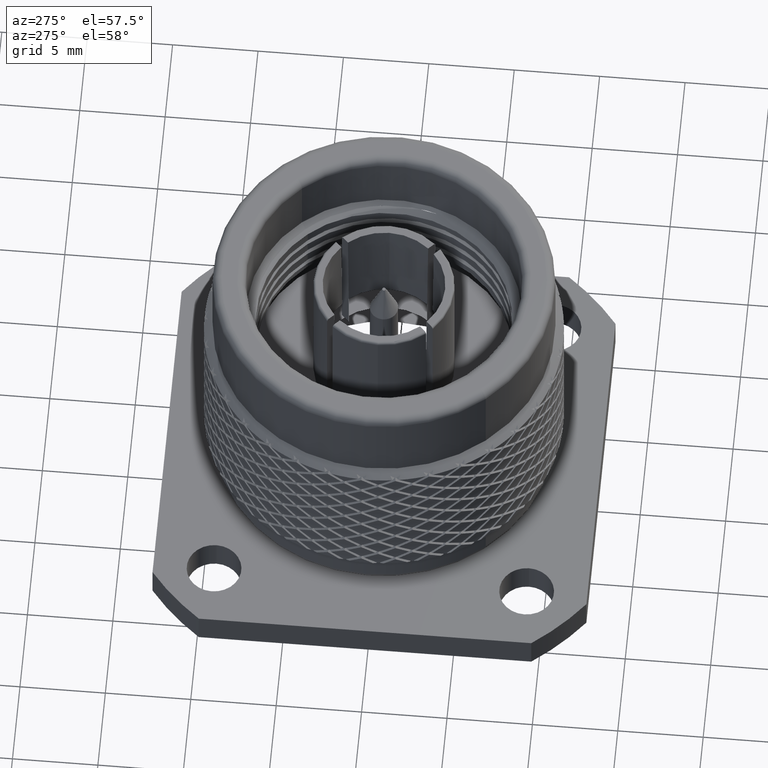
[diagram: clean part render]
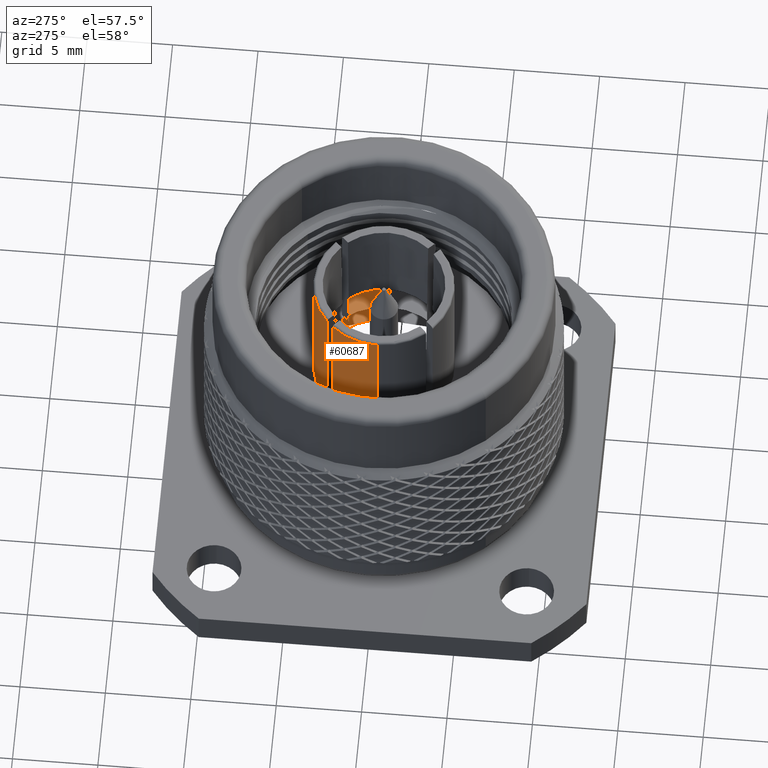
[diagram: same view with one face highlighted and labeled with its STEP entity id]
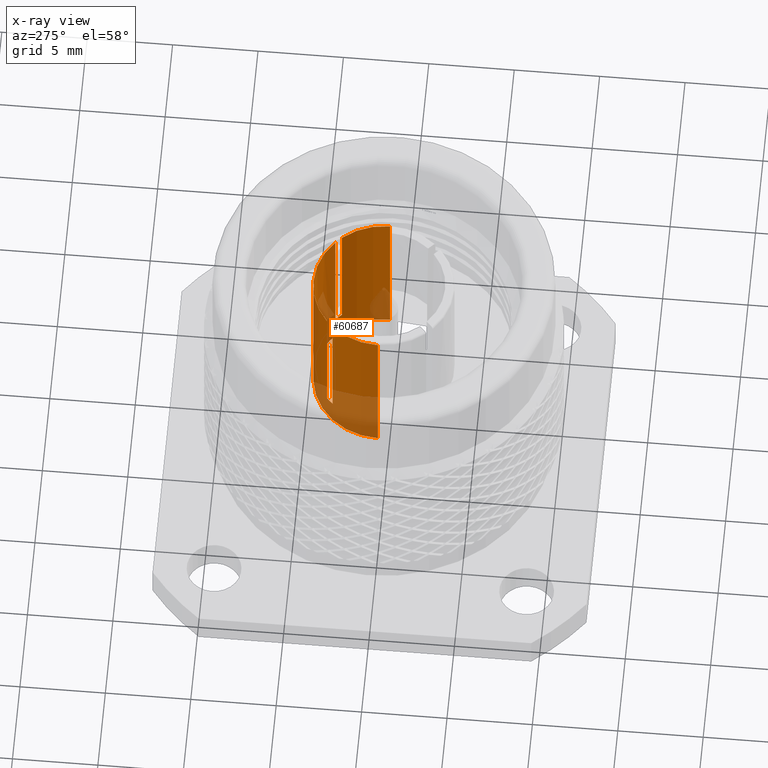
[diagram: x-ray of the same camera — body ghosted, the highlighted face saturated]
A machine part, auxiliary view. The second image highlights one B-rep face of the part: STEP entity #60687.
The next image is the same camera in x-ray: the body ghosted, the highlighted face saturated — about 26% of this face is hidden behind the body in this view.
In plain terms, the highlighted cylindrical surface (partial cylindrical patch) has radius 4.125 mm, axis along (-0, -0, -1).
Its self-contained STEP definition (entity closure, byte-faithful):
#310 = DIRECTION ( 'NONE',  ( -1.000000000000000000, 0.000000000000000000, 0.000000000000000000 ) ) ;
#857 = VERTEX_POINT ( 'NONE', #29938 ) ;
#932 = CARTESIAN_POINT ( 'NONE',  ( -3.088230370009642733, 2.734676979416418519, 19.59999999999999787 ) ) ;
#1042 = VERTEX_POINT ( 'NONE', #10376 ) ;
#1084 = DIRECTION ( 'NONE',  ( -0.000000000000000000, -0.000000000000000000, -1.000000000000000000 ) ) ;
#1649 = LINE ( 'NONE', #98027, #85369 ) ;
#1927 = ORIENTED_EDGE ( 'NONE', *, *, #38778, .F. ) ;
#2506 = DIRECTION ( 'NONE',  ( 0.000000000000000000, 0.000000000000000000, 1.000000000000000000 ) ) ;
#3389 = CARTESIAN_POINT ( 'NONE',  ( -4.125000000000000000, 0.000000000000000000, 19.59999999999999787 ) ) ;
#4467 = CYLINDRICAL_SURFACE ( 'NONE', #80244, 4.125000000000000000 ) ;
#5751 = AXIS2_PLACEMENT_3D ( 'NONE', #12696, #107561, #143927 ) ;
#8652 = VERTEX_POINT ( 'NONE', #3389 ) ;
#10376 = CARTESIAN_POINT ( 'NONE',  ( -4.125000000000000000, 0.000000000000000000, 9.500000000000000000 ) ) ;
#11199 = CARTESIAN_POINT ( 'NONE',  ( 4.125000000000000000, 5.051668046482832750E-16, 7.700000000000000178 ) ) ;
#12696 = CARTESIAN_POINT ( 'NONE',  ( 0.000000000000000000, 0.000000000000000000, 19.59999999999999787 ) ) ;
#13349 = EDGE_CURVE ( 'NONE', #40521, #20719, #70307, .T. ) ;
#18270 = DIRECTION ( 'NONE',  ( -1.000000000000000000, 0.000000000000000000, 0.000000000000000000 ) ) ;
#19947 = ORIENTED_EDGE ( 'NONE', *, *, #94926, .T. ) ;
#20719 = VERTEX_POINT ( 'NONE', #38575 ) ;
#21070 = ORIENTED_EDGE ( 'NONE', *, *, #118331, .F. ) ;
#22258 = CARTESIAN_POINT ( 'NONE',  ( 3.088230370009661385, 2.734676979416397646, 19.59999999999999787 ) ) ;
#23812 = VERTEX_POINT ( 'NONE', #932 ) ;
#24120 = VECTOR ( 'NONE', #25448, 1000.000000000000000 ) ;
#25024 = ORIENTED_EDGE ( 'NONE', *, *, #110481, .F. ) ;
#25448 = DIRECTION ( 'NONE',  ( -0.000000000000000000, -0.000000000000000000, -1.000000000000000000 ) ) ;
#25613 = EDGE_CURVE ( 'NONE', #140441, #79129, #1649, .T. ) ;
#26226 = LINE ( 'NONE', #11199, #24120 ) ;
#26432 = CARTESIAN_POINT ( 'NONE',  ( 4.125000000000000000, 5.051668046482832750E-16, 9.500000000000000000 ) ) ;
#28543 = DIRECTION ( 'NONE',  ( -0.000000000000000000, -0.000000000000000000, -1.000000000000000000 ) ) ;
#29925 = CIRCLE ( 'NONE', #50063, 4.125000000000000000 ) ;
#29938 = CARTESIAN_POINT ( 'NONE',  ( 2.734676979416386100, 3.088230370009671155, 19.59999999999999787 ) ) ;
#31088 = AXIS2_PLACEMENT_3D ( 'NONE', #33023, #104880, #103299 ) ;
#32601 = ORIENTED_EDGE ( 'NONE', *, *, #60216, .F. ) ;
#33023 = CARTESIAN_POINT ( 'NONE',  ( 0.000000000000000000, 0.000000000000000000, 9.500000000000000000 ) ) ;
#36348 = CARTESIAN_POINT ( 'NONE',  ( -2.734676979416365228, 3.088230370009690695, 7.700000000000000178 ) ) ;
#37195 = CARTESIAN_POINT ( 'NONE',  ( 3.088230370009660941, 2.734676979416397202, 11.25000000000000000 ) ) ;
#37791 = ORIENTED_EDGE ( 'NONE', *, *, #43466, .T. ) ;
#38575 = CARTESIAN_POINT ( 'NONE',  ( -2.734676979416364784, 3.088230370009689807, 11.25000000000000000 ) ) ;
#38778 = EDGE_CURVE ( 'NONE', #40521, #23812, #40833, .T. ) ;
#40382 = CIRCLE ( 'NONE', #105909, 4.125000000000000000 ) ;
#40521 = VERTEX_POINT ( 'NONE', #124482 ) ;
#40833 = LINE ( 'NONE', #100069, #131311 ) ;
#43167 = DIRECTION ( 'NONE',  ( -0.000000000000000000, -0.000000000000000000, -1.000000000000000000 ) ) ;
#43466 = EDGE_CURVE ( 'NONE', #81524, #857, #40382, .T. ) ;
#48193 = DIRECTION ( 'NONE',  ( -0.000000000000000000, -0.000000000000000000, -1.000000000000000000 ) ) ;
#50063 = AXIS2_PLACEMENT_3D ( 'NONE', #99637, #85443, #18270 ) ;
#50798 = ORIENTED_EDGE ( 'NONE', *, *, #69221, .T. ) ;
#58784 = ORIENTED_EDGE ( 'NONE', *, *, #147825, .F. ) ;
#60216 = EDGE_CURVE ( 'NONE', #81524, #20719, #105901, .T. ) ;
#60687 = ADVANCED_FACE ( 'NONE', ( #101638 ), #4467, .T. ) ;
#65316 = DIRECTION ( 'NONE',  ( -1.000000000000000000, 0.000000000000000000, 0.000000000000000000 ) ) ;
#65794 = CARTESIAN_POINT ( 'NONE',  ( 4.125000000000000000, 5.051668046482832750E-16, 19.59999999999999787 ) ) ;
#69221 = EDGE_CURVE ( 'NONE', #124958, #79129, #151667, .T. ) ;
#70307 = CIRCLE ( 'NONE', #120736, 4.125000000000000000 ) ;
#75159 = CARTESIAN_POINT ( 'NONE',  ( 0.000000000000000000, 0.000000000000000000, 11.25000000000000000 ) ) ;
#75993 = ORIENTED_EDGE ( 'NONE', *, *, #111481, .T. ) ;
#79129 = VERTEX_POINT ( 'NONE', #37195 ) ;
#80244 = AXIS2_PLACEMENT_3D ( 'NONE', #115112, #43167, #65316 ) ;
#81524 = VERTEX_POINT ( 'NONE', #110656 ) ;
#85023 = CARTESIAN_POINT ( 'NONE',  ( -4.125000000000000000, 0.000000000000000000, 7.700000000000000178 ) ) ;
#85369 = VECTOR ( 'NONE', #146276, 1000.000000000000000 ) ;
#85443 = DIRECTION ( 'NONE',  ( -0.000000000000000000, -0.000000000000000000, -1.000000000000000000 ) ) ;
#85452 = VECTOR ( 'NONE', #2506, 1000.000000000000000 ) ;
#85945 = AXIS2_PLACEMENT_3D ( 'NONE', #132349, #107865, #133120 ) ;
#88983 = DIRECTION ( 'NONE',  ( 0.000000000000000000, 0.000000000000000000, 1.000000000000000000 ) ) ;
#92559 = VECTOR ( 'NONE', #105668, 1000.000000000000000 ) ;
#92672 = ORIENTED_EDGE ( 'NONE', *, *, #13349, .T. ) ;
#94926 = EDGE_CURVE ( 'NONE', #134283, #153857, #26226, .T. ) ;
#96890 = LINE ( 'NONE', #85023, #92559 ) ;
#98027 = CARTESIAN_POINT ( 'NONE',  ( 3.088230370009661829, 2.734676979416397646, 7.700000000000000178 ) ) ;
#99637 = CARTESIAN_POINT ( 'NONE',  ( 0.000000000000000000, 0.000000000000000000, 19.59999999999999787 ) ) ;
#100069 = CARTESIAN_POINT ( 'NONE',  ( -3.088230370009643178, 2.734676979416418963, 7.700000000000000178 ) ) ;
#101638 = FACE_OUTER_BOUND ( 'NONE', #120437, .T. ) ;
#101892 = ORIENTED_EDGE ( 'NONE', *, *, #25613, .F. ) ;
#103299 = DIRECTION ( 'NONE',  ( -1.000000000000000000, 0.000000000000000000, 0.000000000000000000 ) ) ;
#104880 = DIRECTION ( 'NONE',  ( -0.000000000000000000, -0.000000000000000000, -1.000000000000000000 ) ) ;
#105668 = DIRECTION ( 'NONE',  ( -0.000000000000000000, -0.000000000000000000, -1.000000000000000000 ) ) ;
#105901 = LINE ( 'NONE', #36348, #128207 ) ;
#105909 = AXIS2_PLACEMENT_3D ( 'NONE', #109351, #1084, #310 ) ;
#107561 = DIRECTION ( 'NONE',  ( -0.000000000000000000, -0.000000000000000000, -1.000000000000000000 ) ) ;
#107865 = DIRECTION ( 'NONE',  ( -0.000000000000000000, -0.000000000000000000, -1.000000000000000000 ) ) ;
#109351 = CARTESIAN_POINT ( 'NONE',  ( 0.000000000000000000, 0.000000000000000000, 19.59999999999999787 ) ) ;
#110481 = EDGE_CURVE ( 'NONE', #1042, #153857, #114315, .T. ) ;
#110656 = CARTESIAN_POINT ( 'NONE',  ( -2.734676979416364784, 3.088230370009689807, 19.59999999999999787 ) ) ;
#111481 = EDGE_CURVE ( 'NONE', #140441, #134283, #131973, .T. ) ;
#114315 = CIRCLE ( 'NONE', #31088, 4.125000000000000000 ) ;
#115112 = CARTESIAN_POINT ( 'NONE',  ( 0.000000000000000000, 0.000000000000000000, 7.700000000000000178 ) ) ;
#117895 = ORIENTED_EDGE ( 'NONE', *, *, #126957, .T. ) ;
#118331 = EDGE_CURVE ( 'NONE', #124958, #857, #136023, .T. ) ;
#120437 = EDGE_LOOP ( 'NONE', ( #75993, #19947, #25024, #58784, #117895, #1927, #92672, #32601, #37791, #21070, #50798, #101892 ) ) ;
#120736 = AXIS2_PLACEMENT_3D ( 'NONE', #75159, #28543, #148640 ) ;
#124482 = CARTESIAN_POINT ( 'NONE',  ( -3.088230370009642289, 2.734676979416418963, 11.25000000000000000 ) ) ;
#124955 = CARTESIAN_POINT ( 'NONE',  ( 2.734676979416386100, 3.088230370009671155, 7.700000000000000178 ) ) ;
#124958 = VERTEX_POINT ( 'NONE', #150044 ) ;
#126957 = EDGE_CURVE ( 'NONE', #8652, #23812, #29925, .T. ) ;
#128207 = VECTOR ( 'NONE', #48193, 1000.000000000000000 ) ;
#131311 = VECTOR ( 'NONE', #88983, 1000.000000000000000 ) ;
#131973 = CIRCLE ( 'NONE', #5751, 4.125000000000000000 ) ;
#132349 = CARTESIAN_POINT ( 'NONE',  ( 0.000000000000000000, 0.000000000000000000, 11.25000000000000000 ) ) ;
#133120 = DIRECTION ( 'NONE',  ( 1.000000000000000000, -3.463895836830489037E-14, 0.000000000000000000 ) ) ;
#134283 = VERTEX_POINT ( 'NONE', #65794 ) ;
#136023 = LINE ( 'NONE', #124955, #85452 ) ;
#140441 = VERTEX_POINT ( 'NONE', #22258 ) ;
#143927 = DIRECTION ( 'NONE',  ( -1.000000000000000000, 0.000000000000000000, 0.000000000000000000 ) ) ;
#146276 = DIRECTION ( 'NONE',  ( -0.000000000000000000, -0.000000000000000000, -1.000000000000000000 ) ) ;
#147825 = EDGE_CURVE ( 'NONE', #8652, #1042, #96890, .T. ) ;
#148640 = DIRECTION ( 'NONE',  ( 1.000000000000000000, 0.000000000000000000, 0.000000000000000000 ) ) ;
#150044 = CARTESIAN_POINT ( 'NONE',  ( 2.734676979416385656, 3.088230370009670711, 11.25000000000000000 ) ) ;
#151667 = CIRCLE ( 'NONE', #85945, 4.125000000000000000 ) ;
#153857 = VERTEX_POINT ( 'NONE', #26432 ) ;